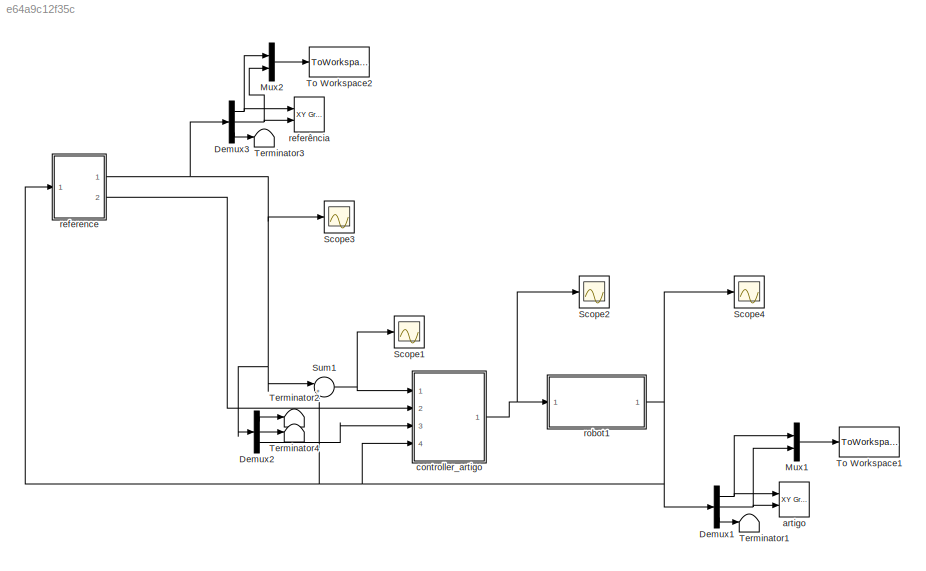
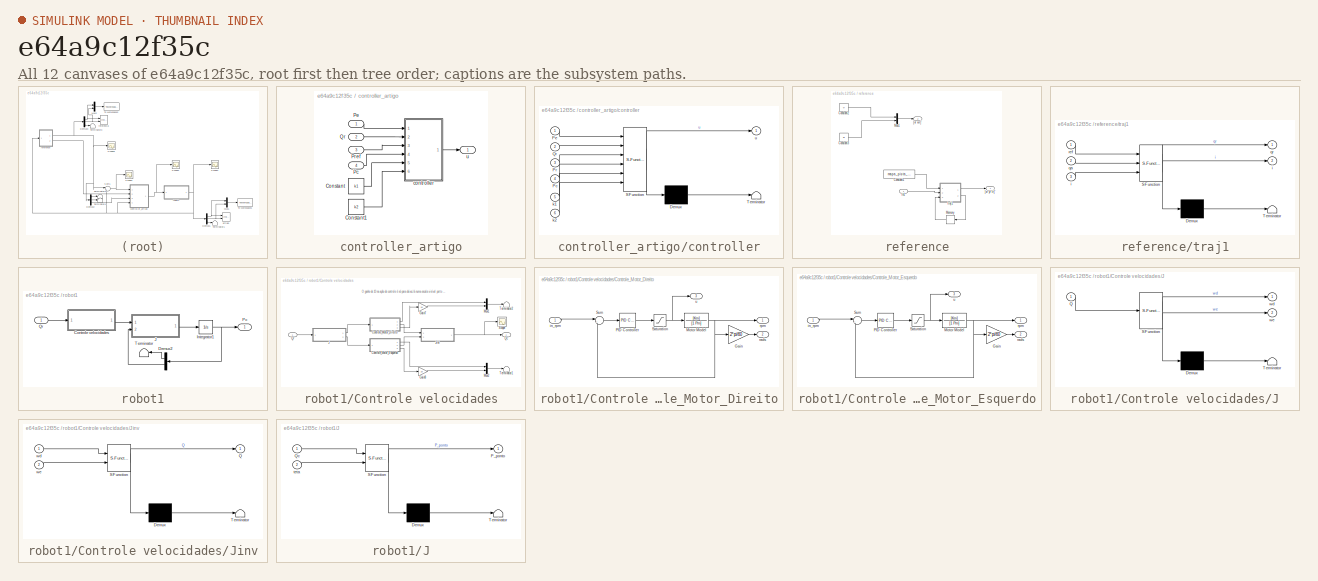
[diagram: thumbnail index - all 12 canvases of the model, root first then tree order]
MODEL slx_e64a9c12f35c
KIND model
CONFIG AbsTol = auto
CONFIG EnableMultiTasking = on
CONFIG FixedStep = auto
CONFIG MaxStep = auto
CONFIG MinStep = auto
CONFIG RelTol = 1e-5
CONFIG SampleTimeConstraint = Unconstrained
CONFIG Solver = ode45
CONFIG SolverName = ode45
CONFIG StartTime = 0.0
CONFIG StopTime = 6
BLOCK [Demux] Demux1
  DisplayOption = bar
  Outputs = 3
  Ports = [1, 3]
BLOCK [Demux] Demux2
  DisplayOption = bar
  Outputs = 3
  Ports = [1, 3]
BLOCK [Demux] Demux3
  DisplayOption = bar
  Outputs = 3
  Ports = [1, 3]
BLOCK [Mux] Mux1
  DisplayOption = bar
  Inputs = 2
  Ports = [2, 1]
BLOCK [Mux] Mux2
  DisplayOption = bar
  Inputs = 2
  Ports = [2, 1]
BLOCK [Scope] Scope1
  Floating = off
  NumInputPorts = 1
  Ports = [1]
  ScopeSpecificationString = Simulink.scopes.TimeScopeBlockCfg('CurrentConfiguration', extmgr.ConfigurationSet(extmgr.Configuration('Core','General UI',true),extmgr.Configuration('Core','Source UI',true),extmgr.Configuration('Sources','WiredSimulink',true,'DataLoggingVariableName','ScopeData2'),extmgr.Configuration('Visuals','Time Domain',true,'SerializedDisplays',{struct('MinYLimReal','-0.04278','MaxYLimReal','0.12848','YLab...<+1524ch>
BLOCK [Scope] Scope2
  Floating = off
  NumInputPorts = 1
  Ports = [1]
  ScopeSpecificationString = Simulink.scopes.TimeScopeBlockCfg('CurrentConfiguration', extmgr.ConfigurationSet(extmgr.Configuration('Core','General UI',true),extmgr.Configuration('Core','Source UI',true),extmgr.Configuration('Sources','WiredSimulink',true,'DataLoggingVariableName','ScopeData1'),extmgr.Configuration('Visuals','Time Domain',true,'SerializedDisplays',{struct('MinYLimReal','-6.38363','MaxYLimReal','15.97804','YLa...<+1477ch>
BLOCK [Scope] Scope3
  Floating = off
  NumInputPorts = 1
  Ports = [1]
  ScopeSpecificationString = Simulink.scopes.TimeScopeBlockCfg('CurrentConfiguration', extmgr.ConfigurationSet(extmgr.Configuration('Core','General UI',true),extmgr.Configuration('Core','Source UI',true),extmgr.Configuration('Sources','WiredSimulink',true,'DataLoggingVariableName','ScopeData2'),extmgr.Configuration('Visuals','Time Domain',true,'SerializedDisplays',{struct('MinYLimReal','-1.56381','MaxYLimReal','8.07431','YLab...<+1479ch>
BLOCK [Scope] Scope4
  Floating = off
  NumInputPorts = 1
  Ports = [1]
  ScopeSpecificationString = Simulink.scopes.TimeScopeBlockCfg('CurrentConfiguration', extmgr.ConfigurationSet(extmgr.Configuration('Core','General UI',true),extmgr.Configuration('Core','Source UI',true),extmgr.Configuration('Sources','WiredSimulink',true,'DataLoggingVariableName','ScopeData3'),extmgr.Configuration('Visuals','Time Domain',true,'SerializedDisplays',{struct('MinYLimReal','-4.95761','MaxYLimReal','17.69904','YLa...<+1437ch>
BLOCK [Sum] Sum1
  AccumDataTypeStr = double
  IconShape = round
  InputSameDT = off
  Inputs = |+-
  OutDataTypeStr = Inherit: Inherit via internal rule
  Ports = [2, 1]
  SaturateOnIntegerOverflow = off
BLOCK [Terminator] Terminator1
BLOCK [Terminator] Terminator2
BLOCK [Terminator] Terminator3
BLOCK [Terminator] Terminator4
BLOCK [ToWorkspace] To Workspace1
  FixptAsFi = on
  MaxDataPoints = inf
  Ports = [1]
  SampleTime = -1
  Save2DSignal = 3-D array (concatenate along third dimension)
  VariableName = artigo
BLOCK [ToWorkspace] To Workspace2
  FixptAsFi = on
  MaxDataPoints = inf
  Ports = [1]
  SampleTime = -1
  Save2DSignal = 3-D array (concatenate along third dimension)
  VariableName = ref_artigo
BLOCK [Reference] artigo  REF=simulink/Sinks/XY Graph
  Ports = [2]
  SourceBlock = simulink/Sinks/XY Graph
  SourceProductBaseCode = SL
  SourceProductName = Simulink
  SourceType = XY scope.
BLOCK [SubSystem] controller_artigo
  Ports = [4, 1]
  RequestExecContextInheritance = off
BLOCK [Constant] controller_artigo/Constant
  Value = k1
BLOCK [Constant] controller_artigo/Constant1
  Value = k2
BLOCK [Inport] controller_artigo/Pc
  IconDisplay = Port number
  Port = 4
BLOCK [Inport] controller_artigo/Pe
  IconDisplay = Port number
BLOCK [Inport] controller_artigo/Pref
  IconDisplay = Port number
  Port = 3
BLOCK [Inport] controller_artigo/Qr
  IconDisplay = Port number
  Port = 2
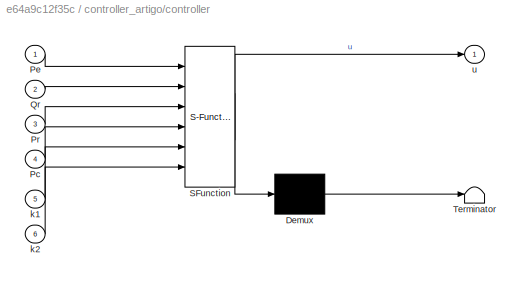
BLOCK [SubSystem] controller_artigo/controller
  ErrorFcn = Stateflow.Translate.translate
  PermitHierarchicalResolution = ExplicitOnly
  Ports = [6, 1]
  RequestExecContextInheritance = off
  SFBlockType = MATLAB Function
  TreatAsAtomicUnit = on
BLOCK [Demux] controller_artigo/controller/ Demux 
  Outputs = 1
  Ports = [1, 1]
BLOCK [S-Function] controller_artigo/controller/ SFunction 
  EnableBusSupport = on
  FunctionName = sf_sfun
  PortCounts = [6 2]
  Ports = [6, 2]
  SFcnIsStateOwnerBlock = off
  SFunctionDeploymentMode = off
  Tag = Stateflow S-Function artigo_pista 1
BLOCK [Terminator] controller_artigo/controller/ Terminator 
BLOCK [Inport] controller_artigo/controller/Pc
  IconDisplay = Port number
  Port = 4
BLOCK [Inport] controller_artigo/controller/Pe
  IconDisplay = Port number
BLOCK [Inport] controller_artigo/controller/Pr
  IconDisplay = Port number
  Port = 3
BLOCK [Inport] controller_artigo/controller/Qr
  IconDisplay = Port number
  Port = 2
BLOCK [Inport] controller_artigo/controller/k1
  IconDisplay = Port number
  Port = 5
BLOCK [Inport] controller_artigo/controller/k2
  IconDisplay = Port number
  Port = 6
BLOCK [Outport] controller_artigo/controller/u
  IconDisplay = Port number
BLOCK [Outport] controller_artigo/u
  IconDisplay = Port number
BLOCK [SubSystem] reference
  Ports = [1, 2]
  RequestExecContextInheritance = off
BLOCK [Constant] reference/Constant1
  Value = mapa_pista_artigo
BLOCK [Constant] reference/Constant2
  Value = vr
  VectorParams1D = off
BLOCK [Constant] reference/Constant3
  Value = wr
  VectorParams1D = off
BLOCK [Inport] reference/In1
  IconDisplay = Port number
BLOCK [Memory] reference/Memory
  InitialCondition = 1
BLOCK [Mux] reference/Mux1
  DisplayOption = bar
  Inputs = 2
  Ports = [2, 1]
BLOCK [Outport] reference/[vr wr]'
  IconDisplay = Port number
  Port = 2
BLOCK [Outport] reference/[xr yr tr]' 
  IconDisplay = Port number
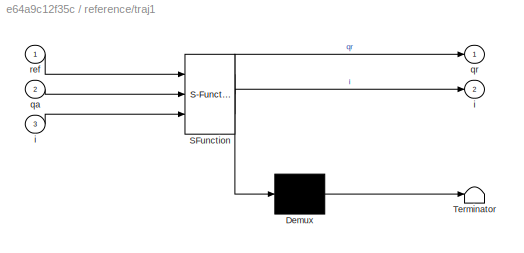
BLOCK [SubSystem] reference/traj1
  ErrorFcn = Stateflow.Translate.translate
  PermitHierarchicalResolution = ExplicitOnly
  Ports = [3, 2]
  RequestExecContextInheritance = off
  SFBlockType = MATLAB Function
  TreatAsAtomicUnit = on
BLOCK [Demux] reference/traj1/ Demux 
  Outputs = 1
  Ports = [1, 1]
BLOCK [S-Function] reference/traj1/ SFunction 
  EnableBusSupport = on
  FunctionName = sf_sfun
  PortCounts = [3 3]
  Ports = [3, 3]
  SFcnIsStateOwnerBlock = off
  SFunctionDeploymentMode = off
  Tag = Stateflow S-Function artigo_pista 12
BLOCK [Terminator] reference/traj1/ Terminator 
BLOCK [Outport] reference/traj1/i
  IconDisplay = Port number
  Port = 2
BLOCK [Inport] reference/traj1/i 
  IconDisplay = Port number
  Port = 3
BLOCK [Inport] reference/traj1/qa
  IconDisplay = Port number
  Port = 2
BLOCK [Outport] reference/traj1/qr
  IconDisplay = Port number
BLOCK [Inport] reference/traj1/ref
  IconDisplay = Port number
BLOCK [Reference] referência  REF=simulink/Sinks/XY Graph
  Ports = [2]
  SourceBlock = simulink/Sinks/XY Graph
  SourceProductBaseCode = SL
  SourceProductName = Simulink
  SourceType = XY scope.
BLOCK [SubSystem] robot1
  Ports = [1, 1]
  RequestExecContextInheritance = off
BLOCK [SubSystem] robot1/Controle velocidades
  Ports = [1, 1]
  RequestExecContextInheritance = off
BLOCK [SubSystem] robot1/Controle velocidades/Controle_Motor_Direito
  Ports = [1, 3]
  RequestExecContextInheritance = off
BLOCK [Gain] robot1/Controle velocidades/Controle_Motor_Direito/Gain
  Gain = 2*pi/60
  OutDataTypeStr = Inherit: Inherit via internal rule
  ParamDataTypeStr = Inherit: Inherit via internal rule
  SaturateOnIntegerOverflow = off
BLOCK [TransferFcn] robot1/Controle velocidades/Controle_Motor_Direito/Motor Model
  Denominator = [1 Pm]
  Numerator = [Km]
BLOCK [Reference] robot1/Controle velocidades/Controle_Motor_Direito/PID Controller  REF=simulink/Continuous/PID Controller
  Ports = [1, 1]
  SourceBlock = simulink/Continuous/PID Controller
  SourceProductBaseCode = SL
  SourceProductName = Simulink
  SourceType = PID 1dof
BLOCK [Saturate] robot1/Controle velocidades/Controle_Motor_Direito/Saturation
  InputPortMap = u0
  LowerLimit = -100
  Ports = [1, 1]
  UpperLimit = 100
BLOCK [Sum] robot1/Controle velocidades/Controle_Motor_Direito/Sum
  IconShape = round
  InputSameDT = off
  Inputs = |+-
  OutDataTypeStr = Inherit: Inherit via internal rule
  Ports = [2, 1]
  SaturateOnIntegerOverflow = off
BLOCK [Inport] robot1/Controle velocidades/Controle_Motor_Direito/in_rpm
  IconDisplay = Port number
BLOCK [Outport] robot1/Controle velocidades/Controle_Motor_Direito/rads
  IconDisplay = Port number
  Port = 2
BLOCK [Outport] robot1/Controle velocidades/Controle_Motor_Direito/rpm
  IconDisplay = Port number
BLOCK [Outport] robot1/Controle velocidades/Controle_Motor_Direito/u
  IconDisplay = Port number
  Port = 3
BLOCK [SubSystem] robot1/Controle velocidades/Controle_Motor_Esquerdo
  Ports = [1, 3]
  RequestExecContextInheritance = off
BLOCK [Gain] robot1/Controle velocidades/Controle_Motor_Esquerdo/Gain
  Gain = 2*pi/60
  OutDataTypeStr = Inherit: Inherit via internal rule
  ParamDataTypeStr = Inherit: Inherit via internal rule
  SaturateOnIntegerOverflow = off
BLOCK [TransferFcn] robot1/Controle velocidades/Controle_Motor_Esquerdo/Motor Model
  Denominator = [1 Pm]
  Numerator = [Km]
BLOCK [Reference] robot1/Controle velocidades/Controle_Motor_Esquerdo/PID Controller  REF=simulink/Continuous/PID Controller
  Ports = [1, 1]
  SourceBlock = simulink/Continuous/PID Controller
  SourceProductBaseCode = SL
  SourceProductName = Simulink
  SourceType = PID 1dof
BLOCK [Saturate] robot1/Controle velocidades/Controle_Motor_Esquerdo/Saturation
  InputPortMap = u0
  LowerLimit = -100
  Ports = [1, 1]
  UpperLimit = 100
BLOCK [Sum] robot1/Controle velocidades/Controle_Motor_Esquerdo/Sum
  IconShape = round
  InputSameDT = off
  Inputs = |+-
  OutDataTypeStr = Inherit: Inherit via internal rule
  Ports = [2, 1]
  SaturateOnIntegerOverflow = off
BLOCK [Inport] robot1/Controle velocidades/Controle_Motor_Esquerdo/in_rpm
  IconDisplay = Port number
BLOCK [Outport] robot1/Controle velocidades/Controle_Motor_Esquerdo/rads
  IconDisplay = Port number
  Port = 2
BLOCK [Outport] robot1/Controle velocidades/Controle_Motor_Esquerdo/rpm
  IconDisplay = Port number
BLOCK [Outport] robot1/Controle velocidades/Controle_Motor_Esquerdo/u
  IconDisplay = Port number
  Port = 3
BLOCK [Gain] robot1/Controle velocidades/Gain7
  Gain = 10
  OutDataTypeStr = Inherit: Inherit via internal rule
  ParamDataTypeStr = Inherit: Inherit via internal rule
  SaturateOnIntegerOverflow = off
BLOCK [Gain] robot1/Controle velocidades/Gain8
  Gain = 10
  OutDataTypeStr = Inherit: Inherit via internal rule
  ParamDataTypeStr = Inherit: Inherit via internal rule
  SaturateOnIntegerOverflow = off
BLOCK [SubSystem] robot1/Controle velocidades/J
  ErrorFcn = Stateflow.Translate.translate
  PermitHierarchicalResolution = ExplicitOnly
  Ports = [1, 2]
  RequestExecContextInheritance = off
  SFBlockType = MATLAB Function
  TreatAsAtomicUnit = on
BLOCK [Demux] robot1/Controle velocidades/J/ Demux 
  Outputs = 1
  Ports = [1, 1]
BLOCK [S-Function] robot1/Controle velocidades/J/ SFunction 
  EnableBusSupport = on
  FunctionName = sf_sfun
  PortCounts = [1 3]
  Ports = [1, 3]
  SFcnIsStateOwnerBlock = off
  SFunctionDeploymentMode = off
  Tag = Stateflow S-Function artigo_pista 8
BLOCK [Terminator] robot1/Controle velocidades/J/ Terminator 
BLOCK [Inport] robot1/Controle velocidades/J/Q
  IconDisplay = Port number
BLOCK [Outport] robot1/Controle velocidades/J/wd
  IconDisplay = Port number
BLOCK [Outport] robot1/Controle velocidades/J/we
  IconDisplay = Port number
  Port = 2
BLOCK [SubSystem] robot1/Controle velocidades/Jinv
  ErrorFcn = Stateflow.Translate.translate
  PermitHierarchicalResolution = ExplicitOnly
  Ports = [2, 1]
  RequestExecContextInheritance = off
  SFBlockType = MATLAB Function
  TreatAsAtomicUnit = on
BLOCK [Demux] robot1/Controle velocidades/Jinv/ Demux 
  Outputs = 1
  Ports = [1, 1]
BLOCK [S-Function] robot1/Controle velocidades/Jinv/ SFunction 
  EnableBusSupport = on
  FunctionName = sf_sfun
  PortCounts = [2 2]
  Ports = [2, 2]
  SFcnIsStateOwnerBlock = off
  SFunctionDeploymentMode = off
  Tag = Stateflow S-Function artigo_pista 9
BLOCK [Terminator] robot1/Controle velocidades/Jinv/ Terminator 
BLOCK [Outport] robot1/Controle velocidades/Jinv/Q
  IconDisplay = Port number
BLOCK [Inport] robot1/Controle velocidades/Jinv/wd
  IconDisplay = Port number
BLOCK [Inport] robot1/Controle velocidades/Jinv/we
  IconDisplay = Port number
  Port = 2
BLOCK [Mux] robot1/Controle velocidades/Mux1
  DisplayOption = bar
  Inputs = 2
  Ports = [2, 1]
BLOCK [Mux] robot1/Controle velocidades/Mux2
  DisplayOption = bar
  Inputs = 2
  Ports = [2, 1]
BLOCK [Outport] robot1/Controle velocidades/Qc
  IconDisplay = Port number
BLOCK [Inport] robot1/Controle velocidades/Qr
  IconDisplay = Port number
BLOCK [Scope] robot1/Controle velocidades/Scope
  Floating = off
  NumInputPorts = 1
  Ports = [1]
  ScopeSpecificationString = Simulink.scopes.TimeScopeBlockCfg('CurrentConfiguration', extmgr.ConfigurationSet(extmgr.Configuration('Core','General UI',true),extmgr.Configuration('Core','Source UI',true),extmgr.Configuration('Sources','WiredSimulink',true,'DataLoggingVariableName','ScopeData1'),extmgr.Configuration('Visuals','Time Domain',true,'SerializedDisplays',{struct('MinYLimReal','-21.67849','MaxYLimReal','21.16618','YL...<+1409ch>
BLOCK [Terminator] robot1/Controle velocidades/Terminator1
BLOCK [Terminator] robot1/Controle velocidades/Terminator2
BLOCK [Demux] robot1/Demux2
  DisplayOption = bar
  Outputs = [2 1]
  Ports = [1, 2]
BLOCK [Integrator] robot1/Integrator1
  InitialCondition = ini
  Ports = [1, 1]
BLOCK [SubSystem] robot1/J
  ErrorFcn = Stateflow.Translate.translate
  PermitHierarchicalResolution = ExplicitOnly
  Ports = [2, 1]
  RequestExecContextInheritance = off
  SFBlockType = MATLAB Function
  TreatAsAtomicUnit = on
BLOCK [Demux] robot1/J/ Demux 
  Outputs = 1
  Ports = [1, 1]
BLOCK [S-Function] robot1/J/ SFunction 
  EnableBusSupport = on
  FunctionName = sf_sfun
  PortCounts = [2 2]
  Ports = [2, 2]
  SFcnIsStateOwnerBlock = off
  SFunctionDeploymentMode = off
  Tag = Stateflow S-Function artigo_pista 10
BLOCK [Terminator] robot1/J/ Terminator 
BLOCK [Outport] robot1/J/P_ponto
  IconDisplay = Port number
BLOCK [Inport] robot1/J/Qc
  IconDisplay = Port number
BLOCK [Inport] robot1/J/teta
  IconDisplay = Port number
  Port = 2
BLOCK [Outport] robot1/Pc
  IconDisplay = Port number
BLOCK [Inport] robot1/Qr
  IconDisplay = Port number
BLOCK [Terminator] robot1/Terminator
ANNOTATION robot1/Controle velocidades: O ganho de 10 na ação de controle é só para deixa-lá numa escala visível perto da velocidade
NET Demux1:1 -> Mux1:1, artigo:1
NET Demux1:2 -> Mux1:2, artigo:2
LINE Demux1:3 -> Terminator1:1
LINE Demux2:1 -> Terminator2:1
LINE Demux2:2 -> Terminator4:1
LINE Demux2:3 -> controller_artigo:3
NET Demux3:1 -> Mux2:1, referência:1
NET Demux3:2 -> Mux2:2, referência:2
LINE Demux3:3 -> Terminator3:1
LINE Mux1:1 -> To Workspace1:1
LINE Mux2:1 -> To Workspace2:1
NET Sum1:1 -> Scope1:1, controller_artigo:1
LINE controller_artigo/Constant1:1 -> controller_artigo/controller:6
LINE controller_artigo/Constant:1 -> controller_artigo/controller:5
LINE controller_artigo/Pc:1 -> controller_artigo/controller:4
LINE controller_artigo/Pe:1 -> controller_artigo/controller:1
LINE controller_artigo/Pref:1 -> controller_artigo/controller:3
LINE controller_artigo/Qr:1 -> controller_artigo/controller:2
LINE controller_artigo/controller:1 -> controller_artigo/u:1
NET controller_artigo:1 -> Scope2:1, robot1:1
LINE reference/Constant1:1 -> reference/traj1:1
LINE reference/Constant2:1 -> reference/Mux1:1
LINE reference/Constant3:1 -> reference/Mux1:2
LINE reference/In1:1 -> reference/traj1:2
LINE reference/Memory:1 -> reference/traj1:3
LINE reference/Mux1:1 -> reference/[vr wr]':1
LINE reference/traj1:1 -> reference/[xr yr tr]' :1
LINE reference/traj1:2 -> reference/Memory:1
NET reference:1 -> Demux2:1, Demux3:1, Scope3:1, Sum1:1
LINE reference:2 -> controller_artigo:2
LINE robot1/Controle velocidades/Controle_Motor_Direito/Gain:1 -> robot1/Controle velocidades/Controle_Motor_Direito/rads:1
NET robot1/Controle velocidades/Controle_Motor_Direito/Motor Model:1 -> robot1/Controle velocidades/Controle_Motor_Direito/Gain:1, robot1/Controle velocidades/Controle_Motor_Direito/Sum:2, robot1/Controle velocidades/Controle_Motor_Direito/rpm:1
LINE robot1/Controle velocidades/Controle_Motor_Direito/PID Controller:1 -> robot1/Controle velocidades/Controle_Motor_Direito/Saturation:1
NET robot1/Controle velocidades/Controle_Motor_Direito/Saturation:1 -> robot1/Controle velocidades/Controle_Motor_Direito/Motor Model:1, robot1/Controle velocidades/Controle_Motor_Direito/u:1
LINE robot1/Controle velocidades/Controle_Motor_Direito/Sum:1 -> robot1/Controle velocidades/Controle_Motor_Direito/PID Controller:1
LINE robot1/Controle velocidades/Controle_Motor_Direito/in_rpm:1 -> robot1/Controle velocidades/Controle_Motor_Direito/Sum:1
LINE robot1/Controle velocidades/Controle_Motor_Direito:1 -> robot1/Controle velocidades/Mux1:1
LINE robot1/Controle velocidades/Controle_Motor_Direito:2 -> robot1/Controle velocidades/Jinv:1
LINE robot1/Controle velocidades/Controle_Motor_Direito:3 -> robot1/Controle velocidades/Gain7:1
LINE robot1/Controle velocidades/Controle_Motor_Esquerdo/Gain:1 -> robot1/Controle velocidades/Controle_Motor_Esquerdo/rads:1
NET robot1/Controle velocidades/Controle_Motor_Esquerdo/Motor Model:1 -> robot1/Controle velocidades/Controle_Motor_Esquerdo/Gain:1, robot1/Controle velocidades/Controle_Motor_Esquerdo/Sum:2, robot1/Controle velocidades/Controle_Motor_Esquerdo/rpm:1
LINE robot1/Controle velocidades/Controle_Motor_Esquerdo/PID Controller:1 -> robot1/Controle velocidades/Controle_Motor_Esquerdo/Saturation:1
NET robot1/Controle velocidades/Controle_Motor_Esquerdo/Saturation:1 -> robot1/Controle velocidades/Controle_Motor_Esquerdo/Motor Model:1, robot1/Controle velocidades/Controle_Motor_Esquerdo/u:1
LINE robot1/Controle velocidades/Controle_Motor_Esquerdo/Sum:1 -> robot1/Controle velocidades/Controle_Motor_Esquerdo/PID Controller:1
LINE robot1/Controle velocidades/Controle_Motor_Esquerdo/in_rpm:1 -> robot1/Controle velocidades/Controle_Motor_Esquerdo/Sum:1
LINE robot1/Controle velocidades/Controle_Motor_Esquerdo:1 -> robot1/Controle velocidades/Mux2:1
LINE robot1/Controle velocidades/Controle_Motor_Esquerdo:2 -> robot1/Controle velocidades/Jinv:2
LINE robot1/Controle velocidades/Controle_Motor_Esquerdo:3 -> robot1/Controle velocidades/Gain8:1
LINE robot1/Controle velocidades/Gain7:1 -> robot1/Controle velocidades/Mux1:2
LINE robot1/Controle velocidades/Gain8:1 -> robot1/Controle velocidades/Mux2:2
LINE robot1/Controle velocidades/J:1 -> robot1/Controle velocidades/Controle_Motor_Direito:1
LINE robot1/Controle velocidades/J:2 -> robot1/Controle velocidades/Controle_Motor_Esquerdo:1
NET robot1/Controle velocidades/Jinv:1 -> robot1/Controle velocidades/Qc:1, robot1/Controle velocidades/Scope:1
LINE robot1/Controle velocidades/Mux1:1 -> robot1/Controle velocidades/Terminator2:1
LINE robot1/Controle velocidades/Mux2:1 -> robot1/Controle velocidades/Terminator1:1
LINE robot1/Controle velocidades/Qr:1 -> robot1/Controle velocidades/J:1
LINE robot1/Controle velocidades:1 -> robot1/J:1
LINE robot1/Demux2:1 -> robot1/Terminator:1
LINE robot1/Demux2:2 -> robot1/J:2
NET robot1/Integrator1:1 -> robot1/Demux2:1, robot1/Pc:1
LINE robot1/J:1 -> robot1/Integrator1:1
LINE robot1/Qr:1 -> robot1/Controle velocidades:1
NET robot1:1 -> Demux1:1, Scope4:1, Sum1:2, controller_artigo:4, reference:1
note: NET lines group one-source signal fan-out (src -> all destinations, sorted); 1:1 wires keep LINE
CHART controller_artigo/controller states=1 transitions=1
  STATE_LABEL 'eML_blk_kernel()'
  STATE_LABEL 'SCRIPT:\nfunction u = fcn(Pe,Qr,Pr,Pc,k1,k2)\n\n% Pe = -Pe;\n% Pe = -[cos(Pc(3)) sin(Pc(3)) 0; -sin(Pc(3)) cos(Pc(3)) 0; 0 0 1]*Pe;\n% Pe(2) = -Pe(2);\n% \n% if Pe(3) ~= 0\n%     w = k1*Pe(3) + k2*Pe(2)*Qr(1)*sin(Pe(3))/Pe(3);\n% else\n%     w = k2*Pe(2)*Qr(1);\n% end\nl = sin(Pr)*(Pe(1)) + cos(Pr)*(Pe(2));\nif Pe(3) ~= 0\n    w = k1*Pe(3) + k2*l*Qr(1)*sin(Pe(3))/Pe(3);\nelse\n    w = k2*l*Qr(1);\nend\n\nu = [Qr(1);...<+10ch>'
CHART robot1/Controle velocidades/J states=1 transitions=1
  STATE_LABEL 'eML_blk_kernel()'
  STATE_LABEL 'SCRIPT:\nfunction [wd, we] = fcn(Q)\n% Dados do robô\nr = 16e-3;      % Raio da roda\na = 69e-3;      % Distância do centro do robô até o centro das rodas\n\nw_mot_rpm = (60/(2*pi))*[1/r a/r; 1/r -a/r]*Q;   % o 60/(2pi) é pra converter p/ rpm\nwd = w_mot_rpm(1);\nwe = w_mot_rpm(2);'
CHART robot1/Controle velocidades/Jinv states=1 transitions=1
  STATE_LABEL 'eML_blk_kernel()'
  STATE_LABEL 'SCRIPT:\nfunction Q = fcn(wd, we)\n% Dados do robô\nr = 16e-3;      % Raio da roda\na = 69e-3;      % Distância do centro do robô até o centro das rodas\n\nQ = (r/2)*[1 1; 1/a -1/a]*[wd; we];\n\n'
CHART robot1/J states=1 transitions=1
  STATE_LABEL 'eML_blk_kernel()'
  STATE_LABEL 'SCRIPT:\nfunction P_ponto = fcn(Qc, teta)\n\nP_ponto = [Qc(1)*cos(teta); Qc(1)*sin(teta); Qc(2)]; %[Vx, Vy, Vteta];\n'
CHART reference/traj1 states=1 transitions=1
  STATE_LABEL 'eML_blk_kernel()'
  STATE_LABEL 'SCRIPT:\nfunction [qr, i] = fcn(ref, qa, i)\n\n    A = [ones(100,1)*qa(1), ones(100,1)*qa(2)];\n    \n    B = ref(i:i+99,1:2);\n    %compute Euclidean distances:\n    dist2 = sum((B - A) .^ 2, 2);\n    %find the smallest distance and use that as an index into B:\n    [v, idx] = min(dist2);\n    qr = ref(i+idx-1,:);    \n\n    i = i+idx-1;\n    %qr = [1 2 3];\n \nend'
